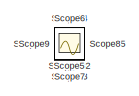
[diagram: root canvas - part 1/2, top left region]
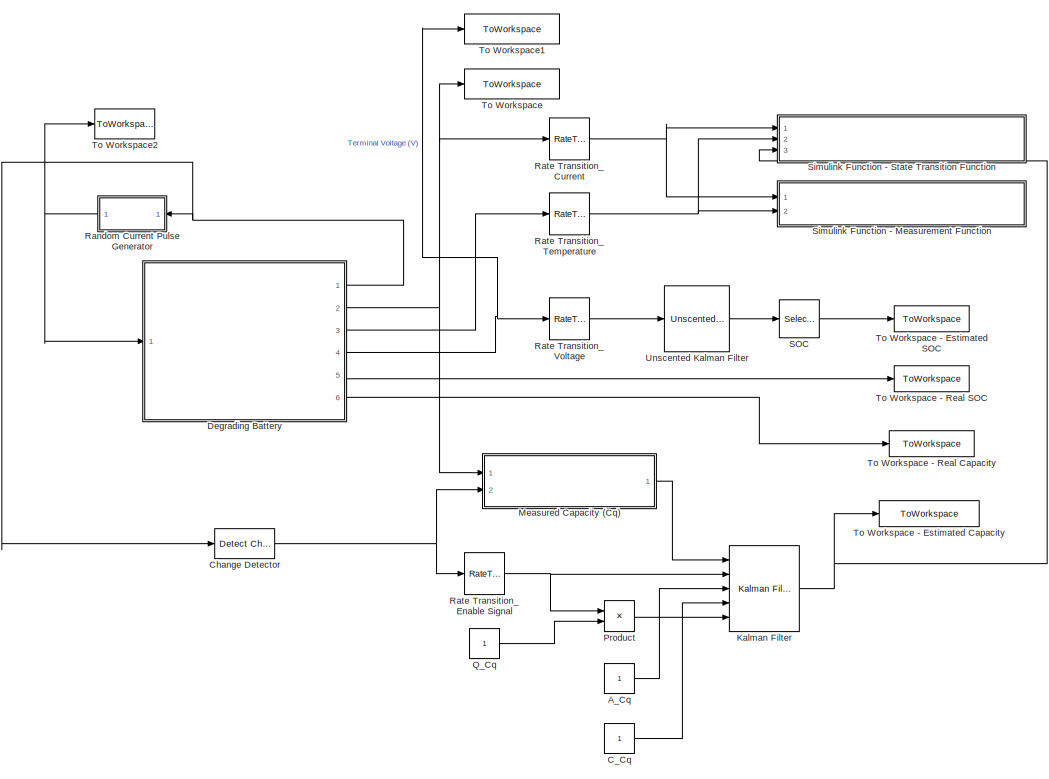
[diagram: root canvas - part 2/2, most of the canvas]
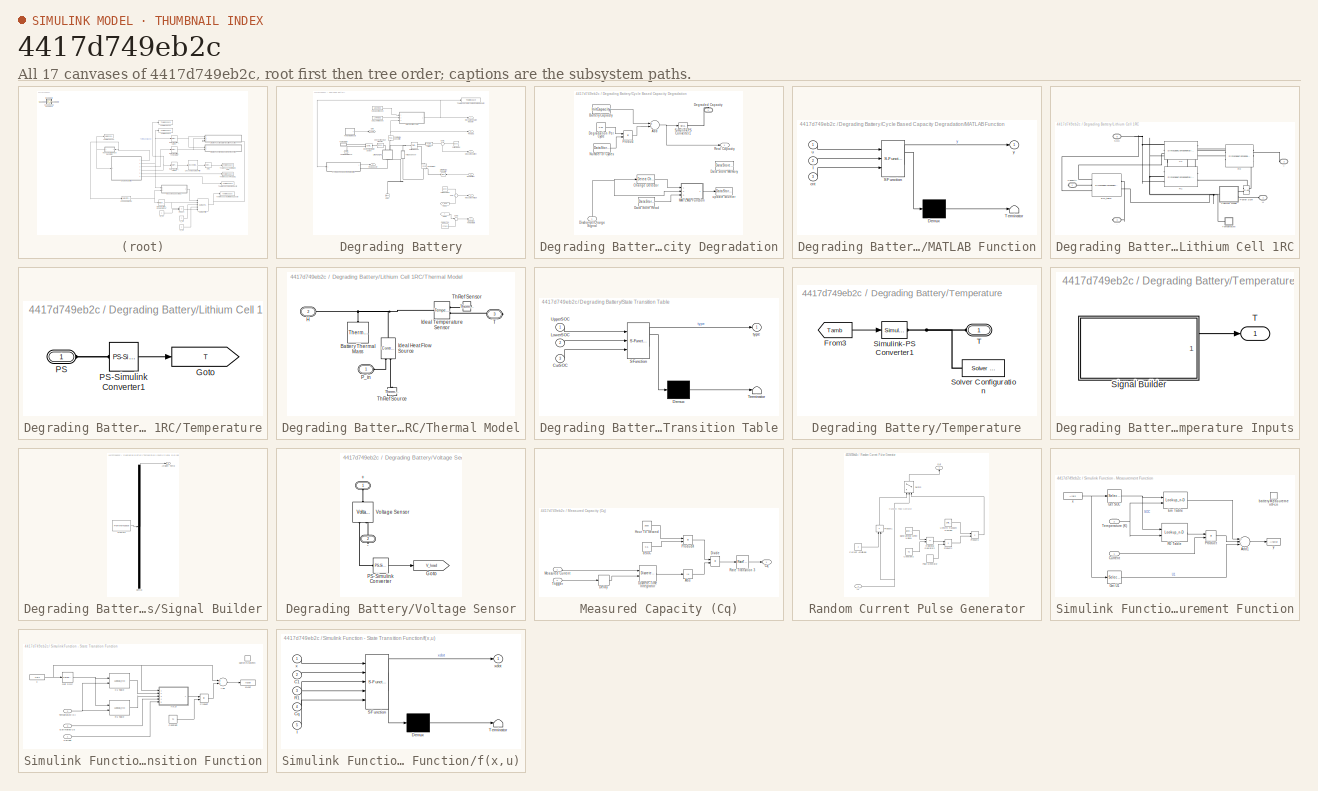
[diagram: thumbnail index - all 17 canvases of the model, root first then tree order]
MODEL slx_4417d749eb2c
KIND model
CONFIG AbsTol = auto
CONFIG EnableMultiTasking = off
CONFIG FixedStep = auto
CONFIG MaxStep = auto
CONFIG MinStep = auto
CONFIG RelTol = 1e-3
CONFIG SampleTimeConstraint = Unconstrained
CONFIG Solver = VariableStepAuto
CONFIG SolverName = VariableStepAuto
CONFIG StartTime = 0.0
CONFIG StopTime = 100000
BLOCK [Constant] A_Cq
BLOCK [Constant] C_Cq
BLOCK [Reference] Change Detector  REF=simulink/Logic and Bit
Operations/Detect
Change
  Ports = [1, 1]
  SourceBlock = simulink/Logic and Bit\nOperations/Detect\nChange
  SourceProductBaseCode = SL
  SourceProductName = Simulink
  SourceType = Detect Change
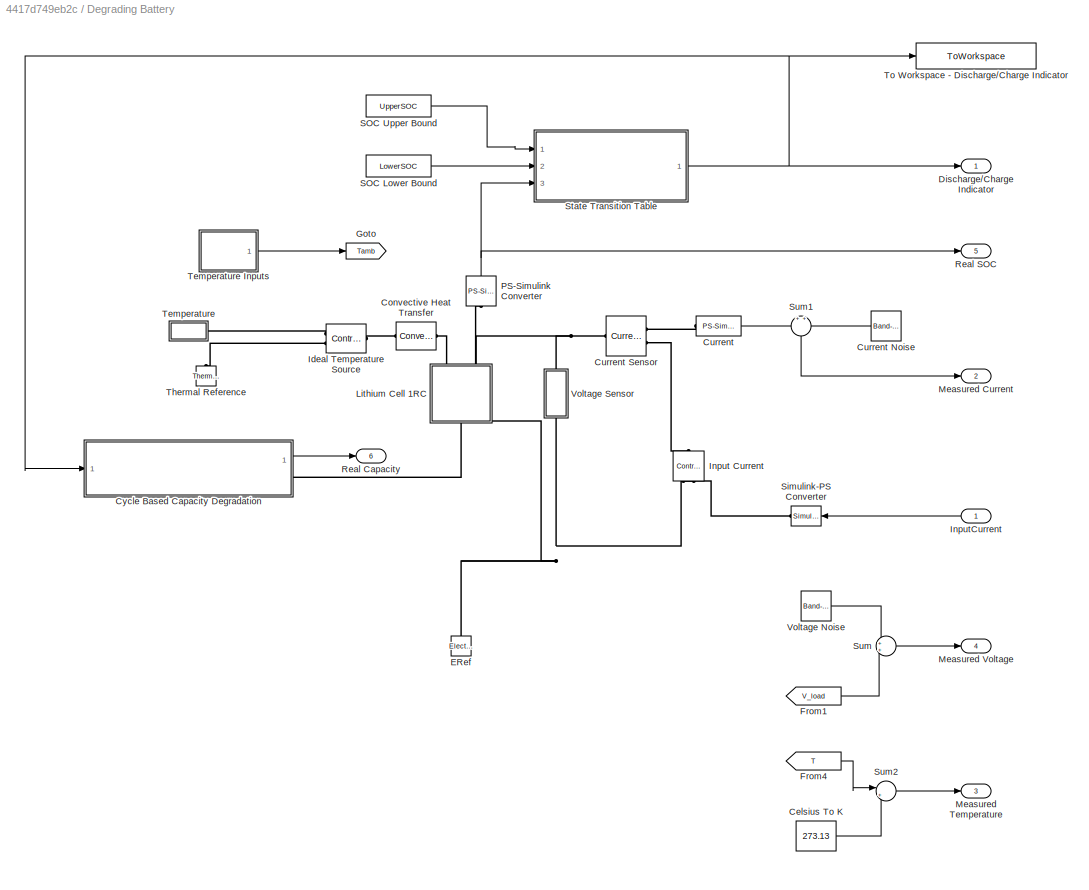
BLOCK [SubSystem] Degrading Battery
  Ports = [1, 6]
  RequestExecContextInheritance = off
  Variant = off
BLOCK [Constant] Degrading Battery/Celsius To K
  Value = 273.13
BLOCK [Reference] Degrading Battery/Convective Heat Transfer  REF=fl_lib/Thermal/Thermal Elements/Convective Heat
Transfer
  Ports = [0, 0, 0, 0, 0, 1, 1]
  SourceBlock = fl_lib/Thermal/Thermal Elements/Convective Heat\nTransfer
  SourceProductBaseCode = SS
  SourceProductName = Simscape
  SourceType = Convective Heat\nTransfer
BLOCK [Reference] Degrading Battery/Current  REF=nesl_utility/PS-Simulink
Converter
  Ports = [0, 1, 0, 0, 0, 1]
  SourceBlock = nesl_utility/PS-Simulink\nConverter
  SourceProductBaseCode = SS
  SourceProductName = Simscape
  SourceType = PS-Simulink\nConverter
BLOCK [Reference] Degrading Battery/Current Noise  REF=simulink/Sources/Band-Limited
White Noise
  Ports = [0, 1]
  SourceBlock = simulink/Sources/Band-Limited\nWhite Noise
  SourceProductBaseCode = SL
  SourceProductName = Simulink
  SourceType = Band-Limited White Noise.
BLOCK [Reference] Degrading Battery/Current Sensor  REF=fl_lib/Electrical/Electrical Sensors/Current Sensor
  Ports = [0, 0, 0, 0, 0, 1, 2]
  SourceBlock = fl_lib/Electrical/Electrical Sensors/Current Sensor
  SourceProductBaseCode = SS
  SourceProductName = Simscape
  SourceType = Current Sensor
BLOCK [SubSystem] Degrading Battery/Cycle Based Capacity Degradation
  Ports = [1, 1, 0, 0, 0, 0, 1]
  RequestExecContextInheritance = off
  Variant = off
BLOCK [Sum] Degrading Battery/Cycle Based Capacity Degradation/Add
  InputSameDT = off
  Inputs = +-
  OutDataTypeStr = Inherit: Inherit via internal rule
  Ports = [2, 1]
  SaturateOnIntegerOverflow = off
BLOCK [Constant] Degrading Battery/Cycle Based Capacity Degradation/Battery Capacity
  Value = InitCapacity
BLOCK [Reference] Degrading Battery/Cycle Based Capacity Degradation/Change Detector  REF=simulink/Logic and Bit
Operations/Detect
Change
  Ports = [1, 1]
  SourceBlock = simulink/Logic and Bit\nOperations/Detect\nChange
  SourceProductBaseCode = SL
  SourceProductName = Simulink
  SourceType = Detect Change
BLOCK [DataStoreMemory] Degrading Battery/Cycle Based Capacity Degradation/Data Store Memory
  DataStoreName = NumCycle
  ShowAdditionalParam = off
BLOCK [DataStoreRead] Degrading Battery/Cycle Based Capacity Degradation/Data Store Read
  DataStoreName = NumCycle
  Ports = [0, 1]
BLOCK [Constant] Degrading Battery/Cycle Based Capacity Degradation/Degradation Per Cycle
  Value = 0.05
BLOCK [PMIOPort] Degrading Battery/Cycle Based Capacity Degradation/Degraded Capacity
  Port = 1
  Side = Right
BLOCK [Inport] Degrading Battery/Cycle Based Capacity Degradation/Discharge//Charge Signal
  IconDisplay = Port number
BLOCK [SubSystem] Degrading Battery/Cycle Based Capacity Degradation/MATLAB Function
  ErrorFcn = Stateflow.Translate.translate
  PermitHierarchicalResolution = ExplicitOnly
  Ports = [3, 1]
  RequestExecContextInheritance = off
  SFBlockType = MATLAB Function
  TreatAsAtomicUnit = on
  Variant = off
BLOCK [Demux] Degrading Battery/Cycle Based Capacity Degradation/MATLAB Function/ Demux 
  Outputs = 1
  Ports = [1, 1]
BLOCK [S-Function] Degrading Battery/Cycle Based Capacity Degradation/MATLAB Function/ SFunction 
  EnableBusSupport = on
  FunctionName = sf_sfun
  PortCounts = [3 2]
  Ports = [3, 2]
  SFcnIsStateOwnerBlock = off
  SFunctionDeploymentMode = off
  Tag = Stateflow S-Function BatteryExampleUKF 5
BLOCK [Terminator] Degrading Battery/Cycle Based Capacity Degradation/MATLAB Function/ Terminator 
BLOCK [Inport] Degrading Battery/Cycle Based Capacity Degradation/MATLAB Function/I
  IconDisplay = Port number
  Port = 2
BLOCK [Inport] Degrading Battery/Cycle Based Capacity Degradation/MATLAB Function/cnt
  IconDisplay = Port number
  Port = 3
BLOCK [Inport] Degrading Battery/Cycle Based Capacity Degradation/MATLAB Function/u
  IconDisplay = Port number
BLOCK [Outport] Degrading Battery/Cycle Based Capacity Degradation/MATLAB Function/y
  IconDisplay = Port number
BLOCK [DataStoreRead] Degrading Battery/Cycle Based Capacity Degradation/Number of Cycles
  DataStoreName = NumCycle
  Ports = [0, 1]
BLOCK [Product] Degrading Battery/Cycle Based Capacity Degradation/Product
  InputSameDT = off
  OutDataTypeStr = Inherit: Inherit via internal rule
  Ports = [2, 1]
  RndMeth = Floor
  SaturateOnIntegerOverflow = off
BLOCK [Outport] Degrading Battery/Cycle Based Capacity Degradation/Real Capacity
  IconDisplay = Port number
BLOCK [Reference] Degrading Battery/Cycle Based Capacity Degradation/Simulink-PS Converter1  REF=nesl_utility/Simulink-PS
Converter
  Ports = [1, 0, 0, 0, 0, 0, 1]
  SourceBlock = nesl_utility/Simulink-PS\nConverter
  SourceProductBaseCode = SS
  SourceProductName = Simscape
  SourceType = Simulink-PS\nConverter
BLOCK [DataStoreWrite] Degrading Battery/Cycle Based Capacity Degradation/update counter
  DataStoreName = NumCycle
  Ports = [1]
BLOCK [Outport] Degrading Battery/Discharge//Charge Indicator
  IconDisplay = Port number
BLOCK [Reference] Degrading Battery/ERef  REF=fl_lib/Electrical/Electrical Elements/Electrical Reference
  Ports = [0, 0, 0, 0, 0, 1]
  SourceBlock = fl_lib/Electrical/Electrical Elements/Electrical Reference
  SourceProductBaseCode = SS
  SourceProductName = Simscape
  SourceType = Electrical Reference
BLOCK [From] Degrading Battery/From1
  GotoTag = V_load
  TagVisibility = global
BLOCK [From] Degrading Battery/From4
  GotoTag = T
  TagVisibility = global
BLOCK [Goto] Degrading Battery/Goto
  GotoTag = Tamb
  TagVisibility = global
BLOCK [Reference] Degrading Battery/Ideal Temperature Source  REF=fl_lib/Thermal/Thermal Sources/Controlled
Temperature Source
  Ports = [0, 0, 0, 0, 0, 1, 2]
  SourceBlock = fl_lib/Thermal/Thermal Sources/Controlled\nTemperature Source
  SourceProductBaseCode = SS
  SourceProductName = Simscape
  SourceType = Controlled\nTemperature Source
BLOCK [Reference] Degrading Battery/Input Current  REF=fl_lib/Electrical/Electrical Sources/Controlled Current
Source
  Ports = [0, 0, 0, 0, 0, 1, 2]
  SourceBlock = fl_lib/Electrical/Electrical Sources/Controlled Current\nSource
  SourceProductBaseCode = SS
  SourceProductName = Simscape
  SourceType = Controlled Current\nSource
BLOCK [Inport] Degrading Battery/InputCurrent
  IconDisplay = Port number
BLOCK [SubSystem] Degrading Battery/Lithium Cell 1RC
  Ports = [0, 0, 0, 0, 0, 3, 2]
  RequestExecContextInheritance = off
  Tag = PublishSubsystemCustomStyle
  Variant = off
BLOCK [PMIOPort] Degrading Battery/Lithium Cell 1RC/+
  Port = 2
  Side = Left
  Tag = PMCPort
BLOCK [PMIOPort] Degrading Battery/Lithium Cell 1RC/-
  Port = 3
  Side = Right
  Tag = PMCPort
BLOCK [SimscapeComponentBlock] Degrading Battery/Lithium Cell 1RC/C1
  C_Table = C1_LUT
  C_Table_conf = compiletime
  C_Table_unit = F
  ClassName = C_table
  ComponentPath = C_table
  ComponentVariantNames = C_table
  ComponentVariants = C_table
  CopyFcn = simscape.engine.sli.internal.componentblockcallback(gcbh,'COPY')
  MaskDisplay = disp('Simscape\n\n\n')\ndisp('\n\n\nC_table');\ncolor('red');\nport_label('LConn', 3,'SOC');\nport_label('LConn', 2,'T');\nport_label('RConn', 1,'-');\nport_label('LConn', 1,'+');
  MaskType = C_table
  Ports = [0, 0, 0, 0, 0, 3, 1]
  PreCopyFcn = simscape.engine.sli.internal.componentblockcallback(gcbh,'PRECOPY')
  PreDeleteFcn = simscape.engine.sli.internal.componentblockcallback(gcbh,'PREDELETE')
  SOC_Table = SOC_LUT
  SOC_Table_conf = compiletime
  SOC_Table_unit = 1
  SchemaVersion = 1
  SourceFile = C_table
  Temp_Table = Temperature_LUT
  Temp_Table_conf = compiletime
  Temp_Table_unit = K
  v0 = 0
  v0_conf = compiletime
  v0_unit = V
BLOCK [PMIOPort] Degrading Battery/Lithium Cell 1RC/Capacity
  Port = 4
  Side = Right
  Tag = PMCPort
BLOCK [SimscapeComponentBlock] Degrading Battery/Lithium Cell 1RC/Em_table
  ClassName = Em_table
  ComponentPath = Em_table
  ComponentVariantNames = Em_table
  ComponentVariants = Em_table
  CopyFcn = simscape.engine.sli.internal.componentblockcallback(gcbh,'COPY')
  Em_Table = Em_LUT
  Em_Table_conf = compiletime
  Em_Table_unit = V
  MaskDisplay = disp('Simscape\n\n\n')\ndisp('\n\n\nEm_table');\ncolor('red');\nport_label('LConn', 3,'SOC');\nport_label('LConn', 2,'Capacity');\nport_label('RConn', 2,'T');\nport_label('RConn', 1,'-');\nport_label('LConn', 1,'+');
  MaskType = Em_table
  Ports = [0, 0, 0, 0, 0, 3, 2]
  PreCopyFcn = simscape.engine.sli.internal.componentblockcallback(gcbh,'PRECOPY')
  PreDeleteFcn = simscape.engine.sli.internal.componentblockcallback(gcbh,'PREDELETE')
  Qinit = Qinit
  Qinit_conf = compiletime
  Qinit_unit = hr*A
  SOC_Table = SOC_LUT
  SOC_Table_conf = compiletime
  SOC_Table_unit = 1
  SchemaVersion = 1
  SourceFile = Em_table
  Temp_Table = Temperature_LUT
  Temp_Table_conf = compiletime
  Temp_Table_unit = K
BLOCK [PMIOPort] Degrading Battery/Lithium Cell 1RC/H
  Port = 1
  Side = Left
  Tag = PMCPort
BLOCK [Reference] Degrading Battery/Lithium Cell 1RC/Power Sum  REF=fl_lib/Physical Signals/Functions/PS Add
  Ports = [0, 0, 0, 0, 0, 2, 1]
  SourceBlock = fl_lib/Physical Signals/Functions/PS Add
  SourceProductBaseCode = SS
  SourceProductName = Simscape
  SourceType = PS Add
BLOCK [SimscapeComponentBlock] Degrading Battery/Lithium Cell 1RC/R0
  ClassName = R_table
  ComponentPath = R_table
  ComponentVariantNames = R_table
  ComponentVariants = R_table
  CopyFcn = simscape.engine.sli.internal.componentblockcallback(gcbh,'COPY')
  MaskDisplay = disp('Simscape\n\n\n')\ndisp('\n\n\nR_table');\ncolor('red');\nport_label('RConn', 2,'POW');\nport_label('LConn', 3,'SOC');\nport_label('LConn', 2,'T');\nport_label('RConn', 1,'-');\nport_label('LConn', 1,'+');
  MaskType = R_table
  Ports = [0, 0, 0, 0, 0, 3, 2]
  PreCopyFcn = simscape.engine.sli.internal.componentblockcallback(gcbh,'PRECOPY')
  PreDeleteFcn = simscape.engine.sli.internal.componentblockcallback(gcbh,'PREDELETE')
  R_Table = R0_LUT
  R_Table_conf = compiletime
  R_Table_unit = Ohm
  SOC_Table = SOC_LUT
  SOC_Table_conf = compiletime
  SOC_Table_unit = 1
  SchemaVersion = 1
  SourceFile = R_table
  Temp_Table = Temperature_LUT
  Temp_Table_conf = compiletime
  Temp_Table_unit = K
BLOCK [SimscapeComponentBlock] Degrading Battery/Lithium Cell 1RC/R1
  ClassName = R_table
  ComponentPath = R_table
  ComponentVariantNames = R_table
  ComponentVariants = R_table
  CopyFcn = simscape.engine.sli.internal.componentblockcallback(gcbh,'COPY')
  MaskDisplay = disp('Simscape\n\n\n')\ndisp('\n\n\nR_table');\ncolor('red');\nport_label('RConn', 2,'POW');\nport_label('LConn', 3,'SOC');\nport_label('LConn', 2,'T');\nport_label('RConn', 1,'-');\nport_label('LConn', 1,'+');
  MaskType = R_table
  Ports = [0, 0, 0, 0, 0, 3, 2]
  PreCopyFcn = simscape.engine.sli.internal.componentblockcallback(gcbh,'PRECOPY')
  PreDeleteFcn = simscape.engine.sli.internal.componentblockcallback(gcbh,'PREDELETE')
  R_Table = R1_LUT
  R_Table_conf = compiletime
  R_Table_unit = Ohm
  SOC_Table = SOC_LUT
  SOC_Table_conf = compiletime
  SOC_Table_unit = 1
  SchemaVersion = 1
  SourceFile = R_table
  Temp_Table = Temperature_LUT
  Temp_Table_conf = compiletime
  Temp_Table_unit = K
BLOCK [PMIOPort] Degrading Battery/Lithium Cell 1RC/SOC
  Port = 5
  Side = Left
  Tag = PMCPort
BLOCK [SubSystem] Degrading Battery/Lithium Cell 1RC/Temperature
  Ports = [0, 0, 0, 0, 0, 1]
  RequestExecContextInheritance = off
  Variant = off
BLOCK [Goto] Degrading Battery/Lithium Cell 1RC/Temperature/Goto
  GotoTag = T
  TagVisibility = global
BLOCK [PMIOPort] Degrading Battery/Lithium Cell 1RC/Temperature/PS
  Port = 1
  Side = Left
BLOCK [Reference] Degrading Battery/Lithium Cell 1RC/Temperature/PS-Simulink Converter1  REF=nesl_utility/PS-Simulink
Converter
  Ports = [0, 1, 0, 0, 0, 1]
  SourceBlock = nesl_utility/PS-Simulink\nConverter
  SourceProductBaseCode = SS
  SourceProductName = Simscape
  SourceType = PS-Simulink\nConverter
BLOCK [SubSystem] Degrading Battery/Lithium Cell 1RC/Thermal Model
  Ports = [0, 0, 0, 0, 0, 2, 1]
  RequestExecContextInheritance = off
  Variant = off
BLOCK [Reference] Degrading Battery/Lithium Cell 1RC/Thermal Model/Battery Thermal Mass  REF=fl_lib/Thermal/Thermal Elements/Thermal Mass
  Ports = [0, 0, 0, 0, 0, 1]
  SourceBlock = fl_lib/Thermal/Thermal Elements/Thermal Mass
  SourceProductBaseCode = SS
  SourceProductName = Simscape
  SourceType = Thermal Mass
BLOCK [PMIOPort] Degrading Battery/Lithium Cell 1RC/Thermal Model/H
  Port = 2
  Side = Left
  Tag = PMCPort
BLOCK [Reference] Degrading Battery/Lithium Cell 1RC/Thermal Model/Ideal Heat Flow Source  REF=fl_lib/Thermal/Thermal Sources/Controlled Heat Flow
Rate Source
  Ports = [0, 0, 0, 0, 0, 1, 2]
  SourceBlock = fl_lib/Thermal/Thermal Sources/Controlled Heat Flow\nRate Source
  SourceProductBaseCode = SS
  SourceProductName = Simscape
  SourceType = Controlled Heat Flow\nRate Source
BLOCK [Reference] Degrading Battery/Lithium Cell 1RC/Thermal Model/Ideal Temperature Sensor  REF=fl_lib/Thermal/Thermal Sensors/Temperature Sensor
  Ports = [0, 0, 0, 0, 0, 1, 2]
  SourceBlock = fl_lib/Thermal/Thermal Sensors/Temperature Sensor
  SourceProductBaseCode = SS
  SourceProductName = Simscape
  SourceType = Temperature Sensor
BLOCK [PMIOPort] Degrading Battery/Lithium Cell 1RC/Thermal Model/P_in
  Port = 1
  Side = Left
  Tag = PMCPort
BLOCK [PMIOPort] Degrading Battery/Lithium Cell 1RC/Thermal Model/T
  Port = 3
  Side = Right
  Tag = PMCPort
BLOCK [Reference] Degrading Battery/Lithium Cell 1RC/Thermal Model/ThRef Sensor  REF=fl_lib/Thermal/Thermal Elements/Thermal Reference
  Ports = [0, 0, 0, 0, 0, 1]
  SourceBlock = fl_lib/Thermal/Thermal Elements/Thermal Reference
  SourceProductBaseCode = SS
  SourceProductName = Simscape
  SourceType = Thermal Reference
BLOCK [Reference] Degrading Battery/Lithium Cell 1RC/Thermal Model/ThRef Source  REF=fl_lib/Thermal/Thermal Elements/Thermal Reference
  Ports = [0, 0, 0, 0, 0, 1]
  SourceBlock = fl_lib/Thermal/Thermal Elements/Thermal Reference
  SourceProductBaseCode = SS
  SourceProductName = Simscape
  SourceType = Thermal Reference
BLOCK [Outport] Degrading Battery/Measured Current
  IconDisplay = Port number
  Port = 2
BLOCK [Outport] Degrading Battery/Measured Temperature
  IconDisplay = Port number
  Port = 3
BLOCK [Outport] Degrading Battery/Measured Voltage
  IconDisplay = Port number
  Port = 4
BLOCK [Reference] Degrading Battery/PS-Simulink Converter  REF=nesl_utility/PS-Simulink
Converter
  Ports = [0, 1, 0, 0, 0, 1]
  SourceBlock = nesl_utility/PS-Simulink\nConverter
  SourceProductBaseCode = SS
  SourceProductName = Simscape
  SourceType = PS-Simulink\nConverter
BLOCK [Outport] Degrading Battery/Real Capacity
  IconDisplay = Port number
  Port = 6
BLOCK [Outport] Degrading Battery/Real SOC
  IconDisplay = Port number
  Port = 5
BLOCK [Constant] Degrading Battery/SOC Lower Bound
  Value = LowerSOC
BLOCK [Constant] Degrading Battery/SOC Upper Bound
  Value = UpperSOC
BLOCK [Reference] Degrading Battery/Simulink-PS Converter  REF=nesl_utility/Simulink-PS
Converter
  Ports = [1, 0, 0, 0, 0, 0, 1]
  SourceBlock = nesl_utility/Simulink-PS\nConverter
  SourceProductBaseCode = SS
  SourceProductName = Simscape
  SourceType = Simulink-PS\nConverter
BLOCK [SubSystem] Degrading Battery/State Transition Table
  ErrorFcn = Stateflow.Translate.translate
  PermitHierarchicalResolution = ExplicitOnly
  Ports = [3, 1]
  RequestExecContextInheritance = off
  SFBlockType = State Transition Table
  TreatAsAtomicUnit = on
  Variant = off
BLOCK [Demux] Degrading Battery/State Transition Table/ Demux 
  Outputs = 1
  Ports = [1, 1]
BLOCK [S-Function] Degrading Battery/State Transition Table/ SFunction 
  EnableBusSupport = on
  FunctionName = sf_sfun
  PortCounts = [3 2]
  Ports = [3, 2]
  SFcnIsStateOwnerBlock = off
  SFunctionDeploymentMode = off
  Tag = Stateflow S-Function BatteryExampleUKF 4
BLOCK [Terminator] Degrading Battery/State Transition Table/ Terminator 
BLOCK [Inport] Degrading Battery/State Transition Table/CurSOC
  IconDisplay = Port number
  Port = 3
BLOCK [Inport] Degrading Battery/State Transition Table/LowerSOC
  IconDisplay = Port number
  Port = 2
BLOCK [Inport] Degrading Battery/State Transition Table/UpperSOC
  IconDisplay = Port number
BLOCK [Outport] Degrading Battery/State Transition Table/type
  IconDisplay = Port number
BLOCK [Sum] Degrading Battery/Sum
  IconShape = round
  InputSameDT = off
  OutDataTypeStr = Inherit: Inherit via internal rule
  Ports = [2, 1]
  SaturateOnIntegerOverflow = off
BLOCK [Sum] Degrading Battery/Sum1
  IconShape = round
  InputSameDT = off
  OutDataTypeStr = Inherit: Inherit via internal rule
  Ports = [2, 1]
  SaturateOnIntegerOverflow = off
BLOCK [Sum] Degrading Battery/Sum2
  IconShape = round
  InputSameDT = off
  Inputs = |++
  OutDataTypeStr = Inherit: Inherit via internal rule
  Ports = [2, 1]
  SaturateOnIntegerOverflow = off
BLOCK [SubSystem] Degrading Battery/Temperature
  Ports = [0, 0, 0, 0, 0, 1]
  RequestExecContextInheritance = off
  Variant = off
BLOCK [SubSystem] Degrading Battery/Temperature Inputs
  Ports = [0, 1]
  RequestExecContextInheritance = off
  Variant = off
BLOCK [SubSystem] Degrading Battery/Temperature Inputs/Signal Builder
  ClipboardFcn = sigbuilder_block('clipboard');
  CloseFcn = sigbuilder_block('close');
  ContinueFcn = sigbuilder_block('continue');
  CopyFcn = sigbuilder_block('copy');
  DeleteFcn = sigbuilder_block('delete');
  LoadFcn = sigbuilder_block('load');
  MaskHideContents = on
  ModelCloseFcn = sigbuilder_block('modelClose');
  NameChangeFcn = sigbuilder_block('namechange');
  OpenFcn = sigbuilder_block('open',[45.75 269.25 978 385.5 ]);
  PauseFcn = sigbuilder_block('pause');
  Ports = [0, 1]
  PreSaveFcn = sigbuilder_block('preSave');
  RequestExecContextInheritance = off
  StartFcn = sigbuilder_block('start');
  StopFcn = sigbuilder_block('stop');
  Tag = STV Subsys
  Variant = off
BLOCK [Outport] Degrading Battery/Temperature Inputs/Signal Builder/Ambient Temp
  IconDisplay = Port number
  Tag = STV Outport
BLOCK [Demux] Degrading Battery/Temperature Inputs/Signal Builder/Demux
  Outputs = 1
  Ports = [1, 1]
  Tag = STV Demux
BLOCK [FromWorkspace] Degrading Battery/Temperature Inputs/Signal Builder/FromWs
  SampleTime = 0
  Tag = STV FromWs
  VariableName = tuvar
  ZeroCross = on
BLOCK [Outport] Degrading Battery/Temperature Inputs/T
  IconDisplay = Port number
BLOCK [From] Degrading Battery/Temperature/From3
  GotoTag = Tamb
  TagVisibility = global
BLOCK [Reference] Degrading Battery/Temperature/Simulink-PS Converter1  REF=nesl_utility/Simulink-PS
Converter
  Ports = [1, 0, 0, 0, 0, 0, 1]
  SourceBlock = nesl_utility/Simulink-PS\nConverter
  SourceProductBaseCode = SS
  SourceProductName = Simscape
  SourceType = Simulink-PS\nConverter
BLOCK [Reference] Degrading Battery/Temperature/Solver Configuration  REF=nesl_utility/Solver
Configuration
  Ports = [0, 0, 0, 0, 0, 0, 1]
  SourceBlock = nesl_utility/Solver\nConfiguration
  SourceProductBaseCode = SS
  SourceProductName = Simscape
  SourceType = Solver\nConfiguration
BLOCK [PMIOPort] Degrading Battery/Temperature/T
  Port = 1
  Side = Left
BLOCK [Reference] Degrading Battery/Thermal Reference  REF=fl_lib/Thermal/Thermal Elements/Thermal Reference
  Ports = [0, 0, 0, 0, 0, 1]
  SourceBlock = fl_lib/Thermal/Thermal Elements/Thermal Reference
  SourceProductBaseCode = SS
  SourceProductName = Simscape
  SourceType = Thermal Reference
BLOCK [ToWorkspace] Degrading Battery/To Workspace - Discharge//Charge Indicator
  FixptAsFi = on
  MaxDataPoints = inf
  Ports = [1]
  SampleTime = -1
  Save2DSignal = 3-D array (concatenate along third dimension)
  SaveFormat = Timeseries
  VariableName = DischargeChargeIndicator
BLOCK [Reference] Degrading Battery/Voltage Noise  REF=simulink/Sources/Band-Limited
White Noise
  Ports = [0, 1]
  SourceBlock = simulink/Sources/Band-Limited\nWhite Noise
  SourceProductBaseCode = SL
  SourceProductName = Simulink
  SourceType = Band-Limited White Noise.
BLOCK [SubSystem] Degrading Battery/Voltage Sensor
  Ports = [0, 0, 0, 0, 0, 1, 1]
  RequestExecContextInheritance = off
  Variant = off
BLOCK [PMIOPort] Degrading Battery/Voltage Sensor/+
  Port = 1
  Side = Left
BLOCK [PMIOPort] Degrading Battery/Voltage Sensor/-
  Port = 2
  Side = Right
BLOCK [Goto] Degrading Battery/Voltage Sensor/Goto
  GotoTag = V_load
  TagVisibility = global
BLOCK [Reference] Degrading Battery/Voltage Sensor/PS-Simulink Converter  REF=nesl_utility/PS-Simulink
Converter
  Ports = [0, 1, 0, 0, 0, 1]
  SourceBlock = nesl_utility/PS-Simulink\nConverter
  SourceProductBaseCode = SS
  SourceProductName = Simscape
  SourceType = PS-Simulink\nConverter
BLOCK [Reference] Degrading Battery/Voltage Sensor/Voltage Sensor  REF=fl_lib/Electrical/Electrical Sensors/Voltage Sensor
  Ports = [0, 0, 0, 0, 0, 1, 2]
  SourceBlock = fl_lib/Electrical/Electrical Sensors/Voltage Sensor
  SourceProductBaseCode = SS
  SourceProductName = Simscape
  SourceType = Voltage Sensor
BLOCK [Reference] Kalman Filter  REF=ctrlSharedLib/Kalman Filter
  Ports = [5, 1]
  SourceBlock = ctrlSharedLib/Kalman Filter
  SourceProductBaseCode = CT
  SourceProductName = Control System Toolbox
  SourceType = ctrlKalmanFilter
BLOCK [SubSystem] Measured Capacity (Cq)
  Ports = [2, 1]
  RequestExecContextInheritance = off
  Variant = off
BLOCK [Abs] Measured Capacity (Cq)/Abs
  SaturateOnIntegerOverflow = off
BLOCK [Outport] Measured Capacity (Cq)/Cq
  IconDisplay = Port number
BLOCK [Delay] Measured Capacity (Cq)/Delay
  DelayLength = 1
  InitialCondition = 0
  InputPortMap = u0
  Ports = [1, 1]
BLOCK [DiscreteIntegrator] Measured Capacity (Cq)/Discrete-Time Integrator
  ExternalReset = rising
  ICPrevOutput = DiscIntNeverNeededParam
  ICPrevScaledInput = DiscIntNeverNeededParam
  InitialConditionSetting = State (most efficient)
  IntegratorMethod = Integration: Trapezoidal
  Ports = [2, 1]
  SampleTime = -1
BLOCK [Product] Measured Capacity (Cq)/Divide
  InputSameDT = off
  Inputs = /*
  OutDataTypeStr = Inherit: Inherit via internal rule
  Ports = [2, 1]
  RndMeth = Floor
  SaturateOnIntegerOverflow = off
BLOCK [Constant] Measured Capacity (Cq)/Hour To Second
  Value = 3600
BLOCK [Inport] Measured Capacity (Cq)/Measured Current
  IconDisplay = Port number
BLOCK [Product] Measured Capacity (Cq)/Product4
  InputSameDT = off
  OutDataTypeStr = Inherit: Inherit via internal rule
  Ports = [2, 1]
  RndMeth = Floor
  SaturateOnIntegerOverflow = off
BLOCK [RateTransition] Measured Capacity (Cq)/Rate Transition 3
  InitialCondition = InitCapacity
  OutPortSampleTime = Ts
BLOCK [Inport] Measured Capacity (Cq)/Trigger
  IconDisplay = Port number
  Port = 2
BLOCK [Constant] Measured Capacity (Cq)/dSOC
  Value = 0.6
BLOCK [Product] Product
  InputSameDT = off
  OutDataTypeStr = Inherit: Inherit via internal rule
  Ports = [2, 1]
  RndMeth = Floor
  SaturateOnIntegerOverflow = off
BLOCK [Constant] Q_Cq
BLOCK [SubSystem] Random Current Pulse Generator
  Ports = [1, 1]
  RequestExecContextInheritance = off
  Variant = off
BLOCK [Reference] Random Current Pulse Generator/Band-Limited White Noise1  REF=simulink/Sources/Band-Limited
White Noise
  Ports = [0, 1]
  SourceBlock = simulink/Sources/Band-Limited\nWhite Noise
  SourceProductBaseCode = SL
  SourceProductName = Simulink
  SourceType = Band-Limited White Noise.
BLOCK [Constant] Random Current Pulse Generator/Constant2
  Value = 0.1
BLOCK [Constant] Random Current Pulse Generator/Current Amplitude
  Value = 2
BLOCK [Inport] Random Current Pulse Generator/In
  IconDisplay = Port number
BLOCK [Outport] Random Current Pulse Generator/Out
  IconDisplay = Port number
BLOCK [Product] Random Current Pulse Generator/Product1
  InputSameDT = off
  OutDataTypeStr = Inherit: Inherit via internal rule
  Ports = [2, 1]
  RndMeth = Floor
  SaturateOnIntegerOverflow = off
BLOCK [Product] Random Current Pulse Generator/Product2
  InputSameDT = off
  OutDataTypeStr = Inherit: Inherit via internal rule
  Ports = [2, 1]
  RndMeth = Floor
  SaturateOnIntegerOverflow = off
BLOCK [Product] Random Current Pulse Generator/Product3
  InputSameDT = off
  OutDataTypeStr = Inherit: Inherit via internal rule
  Ports = [2, 1]
  RndMeth = Floor
  SaturateOnIntegerOverflow = off
BLOCK [DiscretePulseGenerator] Random Current Pulse Generator/Pulse Generator
  Amplitude = -1
  Period = 1000
  Ports = [0, 1]
  PulseType = Time based
  PulseWidth = 90
BLOCK [RelationalOperator] Random Current Pulse Generator/Relational Operator2
  InputSameDT = off
  Operator = <=
  OutDataTypeStr = boolean
  Ports = [2, 1]
  RndMeth = Simplest
BLOCK [Switch] Random Current Pulse Generator/Switch
  Criteria = u2 > Threshold
  InputSameDT = off
  SaturateOnIntegerOverflow = off
BLOCK [UniformRandomNumber] Random Current Pulse Generator/Uniform Random Number
  Maximum = 1.5
  Minimum = 0.7
  SampleTime = 100
BLOCK [RateTransition] Rate Transition_Current
  OutPortSampleTime = Ts
BLOCK [RateTransition] Rate Transition_Enable Signal
  OutPortSampleTime = Ts
BLOCK [RateTransition] Rate Transition_Temperature
  InitialCondition = 300
  OutPortSampleTime = Ts
BLOCK [RateTransition] Rate Transition_Voltage
  InitialCondition = 4
  OutPortSampleTime = Ts
BLOCK [Selector] SOC
  IndexOptions = Index vector (dialog)
  Indices = 1
  InputPortWidth = 2
  OutputSizes = 1
  Ports = [1, 1]
BLOCK [Scope] Scope
  IOType = viewer
  NumInputPorts = 1
  Ports = []
  ScopeSpecificationString = Simulink.scopes.TimeScopeBlockCfg('CurrentConfiguration', extmgr.ConfigurationSet(extmgr.Configuration('Core','General UI',true),extmgr.Configuration('Core','Source UI',true),extmgr.Configuration('Sources','WiredSimulink',true,'DataLoggingVariableName','ScopeData1'),extmgr.Configuration('Visuals','Time Domain',true,'SerializedDisplays',{struct('MinYLimReal','-0.125','MaxYLimReal','1.125','YLabelRe...<+1375ch>
BLOCK [Scope] Scope1
  IOType = viewer
  NumInputPorts = 1
  Ports = []
  ScopeSpecificationString = Simulink.scopes.TimeScopeBlockCfg('CurrentConfiguration', extmgr.ConfigurationSet(extmgr.Configuration('Core','General UI',true),extmgr.Configuration('Core','Source UI',true),extmgr.Configuration('Sources','WiredSimulink',true,'DataLoggingVariableName','ScopeData1'),extmgr.Configuration('Visuals','Time Domain',true,'SerializedDisplays',{struct('MinYLimReal','-26.96569','MaxYLimReal','55.76087','YL...<+1475ch>
BLOCK [Scope] Scope10
  IOType = viewer
  NumInputPorts = 1
  Ports = []
  ScopeSpecificationString = Simulink.scopes.TimeScopeBlockCfg('CurrentConfiguration', extmgr.ConfigurationSet(extmgr.Configuration('Core','General UI',true),extmgr.Configuration('Core','Source UI',true),extmgr.Configuration('Sources','WiredSimulink',true,'DataLoggingVariableName','ScopeData2'),extmgr.Configuration('Visuals','Time Domain',true,'SerializedDisplays',{struct('MinYLimReal','-10.00000','MaxYLimReal','10.00000','YL...<+1441ch>
BLOCK [Scope] Scope11
  IOType = viewer
  NumInputPorts = 1
  Ports = []
  ScopeSpecificationString = Simulink.scopes.TimeScopeBlockCfg('CurrentConfiguration', extmgr.ConfigurationSet(extmgr.Configuration('Core','General UI',true),extmgr.Configuration('Core','Source UI',true),extmgr.Configuration('Sources','WiredSimulink',true,'DataLoggingVariableName','ScopeData1'),extmgr.Configuration('Visuals','Time Domain',true),extmgr.Configuration('Tools','Plot Navigation',true),extmgr.Configuration('Tools',...<+58ch>
BLOCK [Scope] Scope13
  IOType = viewer
  NumInputPorts = 1
  Ports = []
  ScopeSpecificationString = Simulink.scopes.TimeScopeBlockCfg('CurrentConfiguration', extmgr.ConfigurationSet(extmgr.Configuration('Core','General UI',true),extmgr.Configuration('Core','Source UI',true),extmgr.Configuration('Sources','WiredSimulink',true,'DataLoggingVariableName','ScopeData1'),extmgr.Configuration('Visuals','Time Domain',true,'SerializedDisplays',{struct('MinYLimReal','18.33483','MaxYLimReal','34.98652','YLa...<+1365ch>
BLOCK [Scope] Scope17
  IOType = viewer
  NumInputPorts = 1
  Ports = []
  ScopeSpecificationString = Simulink.scopes.TimeScopeBlockCfg('CurrentConfiguration', extmgr.ConfigurationSet(extmgr.Configuration('Core','General UI',true),extmgr.Configuration('Core','Source UI',true),extmgr.Configuration('Sources','WiredSimulink',true,'DataLoggingVariableName','ScopeData4'),extmgr.Configuration('Visuals','Time Domain',true,'SerializedDisplays',{struct('MinYLimReal','0.999987','MaxYLimReal','1.000001','YLa...<+1412ch>
BLOCK [Scope] Scope18
  IOType = viewer
  NumInputPorts = 1
  Ports = []
  ScopeSpecificationString = Simulink.scopes.TimeScopeBlockCfg('CurrentConfiguration', extmgr.ConfigurationSet(extmgr.Configuration('Core','General UI',true),extmgr.Configuration('Core','Source UI',true),extmgr.Configuration('Sources','WiredSimulink',true,'DataLoggingVariableName','ScopeData5'),extmgr.Configuration('Visuals','Time Domain',true,'SerializedDisplays',{struct('MinYLimReal','-0.00000011','MaxYLimReal','0.00000003'...<+1431ch>
BLOCK [Scope] Scope2
  IOType = viewer
  NumInputPorts = 1
  Ports = []
  ScopeSpecificationString = Simulink.scopes.TimeScopeBlockCfg('CurrentConfiguration', extmgr.ConfigurationSet(extmgr.Configuration('Core','General UI',true),extmgr.Configuration('Core','Source UI',true),extmgr.Configuration('Sources','WiredSimulink',true,'DataLoggingVariableName','ScopeData2'),extmgr.Configuration('Visuals','Time Domain',true,'SerializedDisplays',{struct('MinYLimReal','-0.125','MaxYLimReal','1.125','YLabelRe...<+1347ch>
BLOCK [Scope] Scope20
  IOType = viewer
  NumInputPorts = 1
  Ports = []
  ScopeSpecificationString = Simulink.scopes.TimeScopeBlockCfg('CurrentConfiguration', extmgr.ConfigurationSet(extmgr.Configuration('Core','General UI',true),extmgr.Configuration('Core','Source UI',true),extmgr.Configuration('Sources','WiredSimulink',true,'DataLoggingVariableName','ScopeData1'),extmgr.Configuration('Visuals','Time Domain',true,'SerializedDisplays',{struct('MinYLimReal','29.3125','MaxYLimReal','31.1875','YLabe...<+1429ch>
BLOCK [Scope] Scope22
  IOType = viewer
  NumInputPorts = 1
  Ports = []
  ScopeSpecificationString = Simulink.scopes.TimeScopeBlockCfg('CurrentConfiguration', extmgr.ConfigurationSet(extmgr.Configuration('Core','General UI',true),extmgr.Configuration('Core','Source UI',true),extmgr.Configuration('Sources','WiredSimulink',true,'DataLoggingVariableName','ScopeData1'),extmgr.Configuration('Visuals','Time Domain',true,'SerializedDisplays',{struct('MinYLimReal','27.55102','MaxYLimReal','31.34111','YLa...<+1439ch>
BLOCK [Scope] Scope23
  IOType = viewer
  NumInputPorts = 1
  Ports = []
  ScopeSpecificationString = Simulink.scopes.TimeScopeBlockCfg('CurrentConfiguration', extmgr.ConfigurationSet(extmgr.Configuration('Core','General UI',true),extmgr.Configuration('Core','Source UI',true),extmgr.Configuration('Sources','WiredSimulink',true,'DataLoggingVariableName','ScopeData1'),extmgr.Configuration('Visuals','Time Domain',true,'SerializedDisplays',{struct('MinYLimReal','0.98624','MaxYLimReal','1.12386','YLabe...<+1357ch>
BLOCK [Scope] Scope24
  IOType = viewer
  NumInputPorts = 1
  Ports = []
  ScopeSpecificationString = Simulink.scopes.TimeScopeBlockCfg('CurrentConfiguration', extmgr.ConfigurationSet(extmgr.Configuration('Core','General UI',true),extmgr.Configuration('Core','Source UI',true),extmgr.Configuration('Sources','WiredSimulink',true,'DataLoggingVariableName','ScopeData1'),extmgr.Configuration('Visuals','Time Domain',true,'SerializedDisplays',{struct('MinYLimReal','-114781.3155','MaxYLimReal','114775.701...<+1446ch>
BLOCK [Scope] Scope25
  IOType = viewer
  NumInputPorts = 1
  Ports = []
  ScopeSpecificationString = Simulink.scopes.TimeScopeBlockCfg('CurrentConfiguration', extmgr.ConfigurationSet(extmgr.Configuration('Core','General UI',true),extmgr.Configuration('Core','Source UI',true),extmgr.Configuration('Sources','WiredSimulink',true,'DataLoggingVariableName','ScopeData2'),extmgr.Configuration('Visuals','Time Domain',true,'SerializedDisplays',{struct('MinYLimReal','13.30951','MaxYLimReal','45.58518','YLa...<+1412ch>
BLOCK [Scope] Scope26
  IOType = viewer
  NumInputPorts = 1
  Ports = []
  ScopeSpecificationString = Simulink.scopes.TimeScopeBlockCfg('CurrentConfiguration', extmgr.ConfigurationSet(extmgr.Configuration('Core','General UI',true),extmgr.Configuration('Core','Source UI',true),extmgr.Configuration('Sources','WiredSimulink',true,'DataLoggingVariableName','ScopeData1'),extmgr.Configuration('Visuals','Time Domain',true,'SerializedDisplays',{struct('MinYLimReal','-485.67085','MaxYLimReal','54.67723','Y...<+1396ch>
BLOCK [Scope] Scope27
  IOType = viewer
  NumInputPorts = 1
  Ports = []
  ScopeSpecificationString = Simulink.scopes.TimeScopeBlockCfg('CurrentConfiguration', extmgr.ConfigurationSet(extmgr.Configuration('Core','General UI',true),extmgr.Configuration('Core','Source UI',true),extmgr.Configuration('Sources','WiredSimulink',true,'DataLoggingVariableName','ScopeData2'),extmgr.Configuration('Visuals','Time Domain',true,'SerializedDisplays',{struct('MinYLimReal','-0.00035','MaxYLimReal','0.00016','YLab...<+1431ch>
BLOCK [Scope] Scope28
  IOType = viewer
  NumInputPorts = 1
  Ports = []
  ScopeSpecificationString = Simulink.scopes.TimeScopeBlockCfg('CurrentConfiguration', extmgr.ConfigurationSet(extmgr.Configuration('Core','General UI',true),extmgr.Configuration('Core','Source UI',true),extmgr.Configuration('Sources','WiredSimulink',true,'DataLoggingVariableName','ScopeData3'),extmgr.Configuration('Visuals','Time Domain',true,'SerializedDisplays',{struct('MinYLimReal','-10.00000','MaxYLimReal','10.00000','YL...<+1365ch>
BLOCK [Scope] Scope29
  IOType = viewer
  NumInputPorts = 1
  Ports = []
  ScopeSpecificationString = Simulink.scopes.TimeScopeBlockCfg('CurrentConfiguration', extmgr.ConfigurationSet(extmgr.Configuration('Core','General UI',true),extmgr.Configuration('Core','Source UI',true),extmgr.Configuration('Sources','WiredSimulink',true,'DataLoggingVariableName','ScopeData4'),extmgr.Configuration('Visuals','Time Domain',true,'SerializedDisplays',{struct('MinYLimReal','-0.12458','MaxYLimReal','1.12121','YLab...<+1387ch>
BLOCK [Scope] Scope3
  IOType = viewer
  NumInputPorts = 1
  Ports = []
  ScopeSpecificationString = Simulink.scopes.TimeScopeBlockCfg('CurrentConfiguration', extmgr.ConfigurationSet(extmgr.Configuration('Core','General UI',true),extmgr.Configuration('Core','Source UI',true),extmgr.Configuration('Sources','WiredSimulink',true,'DataLoggingVariableName','ScopeData3'),extmgr.Configuration('Visuals','Time Domain',true,'SerializedDisplays',{struct('MinYLimReal','-0.25','MaxYLimReal','2.25','YLabelReal...<+1341ch>
BLOCK [Scope] Scope30
  IOType = viewer
  NumInputPorts = 1
  Ports = []
  ScopeSpecificationString = Simulink.scopes.TimeScopeBlockCfg('CurrentConfiguration', extmgr.ConfigurationSet(extmgr.Configuration('Core','General UI',true),extmgr.Configuration('Core','Source UI',true),extmgr.Configuration('Sources','WiredSimulink',true,'DataLoggingVariableName','ScopeData2'),extmgr.Configuration('Visuals','Time Domain',true,'SerializedDisplays',{struct('MinYLimReal','-10.00000','MaxYLimReal','10.00000','YL...<+1365ch>
BLOCK [Scope] Scope31
  IOType = viewer
  NumInputPorts = 1
  Ports = []
  ScopeSpecificationString = Simulink.scopes.TimeScopeBlockCfg('CurrentConfiguration', extmgr.ConfigurationSet(extmgr.Configuration('Core','General UI',true),extmgr.Configuration('Core','Source UI',true),extmgr.Configuration('Sources','WiredSimulink',true,'DataLoggingVariableName','ScopeData3'),extmgr.Configuration('Visuals','Time Domain',true,'SerializedDisplays',{struct('MinYLimReal','-10.00000','MaxYLimReal','10.00000','YL...<+1365ch>
BLOCK [Scope] Scope32
  IOType = viewer
  NumInputPorts = 1
  Ports = []
  ScopeSpecificationString = Simulink.scopes.TimeScopeBlockCfg('CurrentConfiguration', extmgr.ConfigurationSet(extmgr.Configuration('Core','General UI',true),extmgr.Configuration('Core','Source UI',true),extmgr.Configuration('Sources','WiredSimulink',true,'DataLoggingVariableName','ScopeData1'),extmgr.Configuration('Visuals','Time Domain',true,'SerializedDisplays',{struct('MinYLimReal','-1.06126','MaxYLimReal','1.06127','YLab...<+1431ch>
BLOCK [Scope] Scope33
  IOType = viewer
  NumInputPorts = 1
  Ports = []
  ScopeSpecificationString = Simulink.scopes.TimeScopeBlockCfg('CurrentConfiguration', extmgr.ConfigurationSet(extmgr.Configuration('Core','General UI',true),extmgr.Configuration('Core','Source UI',true),extmgr.Configuration('Sources','WiredSimulink',true,'DataLoggingVariableName','ScopeData2'),extmgr.Configuration('Visuals','Time Domain',true,'SerializedDisplays',{struct('MinYLimReal','-0.00059','MaxYLimReal','0.00042','YLab...<+1434ch>
BLOCK [Scope] Scope34
  IOType = viewer
  NumInputPorts = 1
  Ports = []
  ScopeSpecificationString = Simulink.scopes.TimeScopeBlockCfg('CurrentConfiguration', extmgr.ConfigurationSet(extmgr.Configuration('Core','General UI',true),extmgr.Configuration('Core','Source UI',true),extmgr.Configuration('Sources','WiredSimulink',true,'DataLoggingVariableName','ScopeData1'),extmgr.Configuration('Visuals','Time Domain',true,'SerializedDisplays',{struct('MinYLimReal','-0.85697','MaxYLimReal','-0.83434','YLa...<+1433ch>
BLOCK [Scope] Scope35
  IOType = viewer
  NumInputPorts = 1
  Ports = []
  ScopeSpecificationString = Simulink.scopes.TimeScopeBlockCfg('CurrentConfiguration', extmgr.ConfigurationSet(extmgr.Configuration('Core','General UI',true),extmgr.Configuration('Core','Source UI',true),extmgr.Configuration('Sources','WiredSimulink',true,'DataLoggingVariableName','ScopeData2'),extmgr.Configuration('Visuals','Time Domain',true,'SerializedDisplays',{struct('MinYLimReal','81460.1851','MaxYLimReal','97590.97105'...<+1459ch>
BLOCK [Scope] Scope4
  IOType = viewer
  NumInputPorts = 1
  Ports = []
  ScopeSpecificationString = Simulink.scopes.TimeScopeBlockCfg('CurrentConfiguration', extmgr.ConfigurationSet(extmgr.Configuration('Core','General UI',true),extmgr.Configuration('Core','Source UI',true),extmgr.Configuration('Sources','WiredSimulink',true,'DataLoggingVariableName','ScopeData4'),extmgr.Configuration('Visuals','Time Domain',true,'SerializedDisplays',{struct('MinYLimReal','-0.04113','MaxYLimReal','1.01085','YLab...<+1406ch>
BLOCK [Scope] Scope5
  IOType = viewer
  NumInputPorts = 1
  Ports = []
  ScopeSpecificationString = Simulink.scopes.TimeScopeBlockCfg('CurrentConfiguration', extmgr.ConfigurationSet(extmgr.Configuration('Core','General UI',true),extmgr.Configuration('Core','Source UI',true),extmgr.Configuration('Sources','WiredSimulink',true,'DataLoggingVariableName','ScopeData5'),extmgr.Configuration('Visuals','Time Domain',true,'SerializedDisplays',{struct('MinYLimReal','-0.0000000001','MaxYLimReal','0.0000000...<+1399ch>
BLOCK [Scope] Scope6
  IOType = viewer
  NumInputPorts = 1
  Ports = []
  ScopeSpecificationString = Simulink.scopes.TimeScopeBlockCfg('CurrentConfiguration', extmgr.ConfigurationSet(extmgr.Configuration('Core','General UI',true),extmgr.Configuration('Core','Source UI',true),extmgr.Configuration('Sources','WiredSimulink',true,'DataLoggingVariableName','ScopeData6'),extmgr.Configuration('Visuals','Time Domain',true,'SerializedDisplays',{struct('MinYLimReal','-12.5','MaxYLimReal','112.5','YLabelRea...<+1345ch>
BLOCK [Scope] Scope7
  IOType = viewer
  NumInputPorts = 1
  Ports = []
  ScopeSpecificationString = Simulink.scopes.TimeScopeBlockCfg('CurrentConfiguration', extmgr.ConfigurationSet(extmgr.Configuration('Core','General UI',true),extmgr.Configuration('Core','Source UI',true),extmgr.Configuration('Sources','WiredSimulink',true,'DataLoggingVariableName','ScopeData7'),extmgr.Configuration('Visuals','Time Domain',true,'SerializedDisplays',{struct('MinYLimReal','-1.25','MaxYLimReal','1.25','YLabelReal...<+1341ch>
BLOCK [Scope] Scope8
  IOType = viewer
  NumInputPorts = 1
  Ports = []
  ScopeSpecificationString = Simulink.scopes.TimeScopeBlockCfg('CurrentConfiguration', extmgr.ConfigurationSet(extmgr.Configuration('Core','General UI',true),extmgr.Configuration('Core','Source UI',true),extmgr.Configuration('Sources','WiredSimulink',true,'DataLoggingVariableName','ScopeData1'),extmgr.Configuration('Visuals','Time Domain',true,'SerializedDisplays',{struct('MinYLimReal','-0.125','MaxYLimReal','1.125','YLabelRe...<+1347ch>
BLOCK [Scope] Scope9
  IOType = viewer
  NumInputPorts = 1
  Ports = []
  ScopeSpecificationString = Simulink.scopes.TimeScopeBlockCfg('CurrentConfiguration', extmgr.ConfigurationSet(extmgr.Configuration('Core','General UI',true),extmgr.Configuration('Core','Source UI',true),extmgr.Configuration('Sources','WiredSimulink',true,'DataLoggingVariableName','ScopeData1'),extmgr.Configuration('Visuals','Time Domain',true,'SerializedDisplays',{struct('MinYLimReal','0.87899','MaxYLimReal','0.88227','YLabe...<+1404ch>
BLOCK [SubSystem] Simulink Function - Measurement Function
  Ports = [2, 0, 0, 1]
  RequestExecContextInheritance = off
  TreatAsAtomicUnit = on
  Variant = off
BLOCK [Sum] Simulink Function - Measurement Function/Add1
  InputSameDT = off
  Inputs = +--
  OutDataTypeStr = Inherit: Inherit via internal rule
  Ports = [3, 1]
  SaturateOnIntegerOverflow = off
BLOCK [Inport] Simulink Function - Measurement Function/Current
  IconDisplay = Port number
BLOCK [Lookup_n-D] Simulink Function - Measurement Function/Em Table
  BreakpointsForDimension1 = SOC_LUT
  BreakpointsForDimension2 = Temperature_LUT
  InternalRulePriority = Speed
  Ports = [2, 1]
  RndMeth = Simplest
  Table = Em_LUT
BLOCK [Selector] Simulink Function - Measurement Function/Get SOC
  IndexOptions = Index vector (dialog)
  Indices = [1]
  InputPortWidth = 2
  OutputSizes = 1
  Ports = [1, 1]
BLOCK [Selector] Simulink Function - Measurement Function/Get U1
  IndexOptions = Index vector (dialog)
  Indices = 2
  InputPortWidth = 2
  OutputSizes = 1
  Ports = [1, 1]
BLOCK [Product] Simulink Function - Measurement Function/Product
  InputSameDT = off
  OutDataTypeStr = Inherit: Inherit via internal rule
  Ports = [2, 1]
  RndMeth = Floor
  SaturateOnIntegerOverflow = off
BLOCK [Lookup_n-D] Simulink Function - Measurement Function/R0 Table
  BreakpointsForDimension1 = SOC_LUT
  BreakpointsForDimension2 = Temperature_LUT
  InternalRulePriority = Speed
  Ports = [2, 1]
  RndMeth = Simplest
  Table = R0_LUT
BLOCK [Inport] Simulink Function - Measurement Function/Temperature (K)
  IconDisplay = Port number
  Port = 2
BLOCK [TriggerPort] Simulink Function - Measurement Function/batteryMeasurementFcn
  FunctionName = batteryMeasurementFcn
  IsSimulinkFunction = on
  Ports = []
  StatesWhenEnabling = held
  TriggerType = function-call
  VariantControl = Variant
BLOCK [ArgIn] Simulink Function - Measurement Function/x
  ArgumentName = x
  DisableCoverage = on
  PortDimensions = 2
BLOCK [ArgOut] Simulink Function - Measurement Function/y
  ArgumentName = y
  DisableCoverage = on
BLOCK [SubSystem] Simulink Function - State Transition Function
  Ports = [3, 0, 0, 1]
  RequestExecContextInheritance = off
  TreatAsAtomicUnit = on
  Variant = off
BLOCK [Sum] Simulink Function - State Transition Function/Add
  InputSameDT = off
  OutDataTypeStr = Inherit: Inherit via internal rule
  Ports = [2, 1]
  SaturateOnIntegerOverflow = off
BLOCK [Lookup_n-D] Simulink Function - State Transition Function/C1 Table
  BreakpointsForDimension1 = SOC_LUT
  BreakpointsForDimension2 = Temperature_LUT
  InternalRulePriority = Speed
  Ports = [2, 1]
  RndMeth = Simplest
  Table = C1_LUT
BLOCK [Constant] Simulink Function - State Transition Function/Constant
  Value = Ts
BLOCK [Inport] Simulink Function - State Transition Function/Current
  IconDisplay = Port number
BLOCK [Inport] Simulink Function - State Transition Function/Estimated Cq
  IconDisplay = Port number
  Port = 3
BLOCK [Selector] Simulink Function - State Transition Function/Get SOC
  IndexOptions = Index vector (dialog)
  Indices = 1
  InputPortWidth = 2
  OutputSizes = 1
  Ports = [1, 1]
BLOCK [Product] Simulink Function - State Transition Function/Product
  InputSameDT = off
  OutDataTypeStr = Inherit: Inherit via internal rule
  Ports = [2, 1]
  RndMeth = Floor
  SaturateOnIntegerOverflow = off
BLOCK [Lookup_n-D] Simulink Function - State Transition Function/R1 Table
  BreakpointsForDimension1 = SOC_LUT
  BreakpointsForDimension2 = Temperature_LUT
  InternalRulePriority = Speed
  Ports = [2, 1]
  RndMeth = Simplest
  Table = R1_LUT
BLOCK [Inport] Simulink Function - State Transition Function/Temperature (K)
  IconDisplay = Port number
  Port = 2
BLOCK [TriggerPort] Simulink Function - State Transition Function/batteryStateFcn
  FunctionName = batteryStateFcn
  IsSimulinkFunction = on
  Ports = []
  StatesWhenEnabling = held
  TriggerType = function-call
  VariantControl = Variant
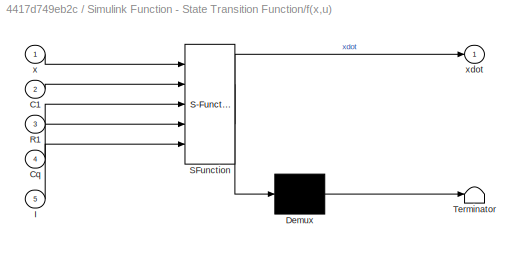
BLOCK [SubSystem] Simulink Function - State Transition Function/f(x,u)
  ErrorFcn = Stateflow.Translate.translate
  PermitHierarchicalResolution = ExplicitOnly
  Ports = [5, 1]
  RequestExecContextInheritance = off
  SFBlockType = MATLAB Function
  TreatAsAtomicUnit = on
  Variant = off
BLOCK [Demux] Simulink Function - State Transition Function/f(x,u)/ Demux 
  Outputs = 1
  Ports = [1, 1]
BLOCK [S-Function] Simulink Function - State Transition Function/f(x,u)/ SFunction 
  EnableBusSupport = on
  FunctionName = sf_sfun
  PortCounts = [5 2]
  Ports = [5, 2]
  SFcnIsStateOwnerBlock = off
  SFunctionDeploymentMode = off
  Tag = Stateflow S-Function BatteryExampleUKF 3
BLOCK [Terminator] Simulink Function - State Transition Function/f(x,u)/ Terminator 
BLOCK [Inport] Simulink Function - State Transition Function/f(x,u)/C1
  IconDisplay = Port number
  Port = 2
BLOCK [Inport] Simulink Function - State Transition Function/f(x,u)/Cq
  IconDisplay = Port number
  Port = 4
BLOCK [Inport] Simulink Function - State Transition Function/f(x,u)/I
  IconDisplay = Port number
  Port = 5
BLOCK [Inport] Simulink Function - State Transition Function/f(x,u)/R1
  IconDisplay = Port number
  Port = 3
BLOCK [Inport] Simulink Function - State Transition Function/f(x,u)/x
  IconDisplay = Port number
BLOCK [Outport] Simulink Function - State Transition Function/f(x,u)/xdot
  IconDisplay = Port number
BLOCK [ArgIn] Simulink Function - State Transition Function/x
  ArgumentName = x
  DisableCoverage = on
  PortDimensions = 2
BLOCK [ArgOut] Simulink Function - State Transition Function/xNext
  ArgumentName = xNext
  DisableCoverage = on
  PortDimensions = 2
BLOCK [ToWorkspace] To Workspace
  FixptAsFi = on
  MaxDataPoints = inf
  Ports = [1]
  SampleTime = -1
  Save2DSignal = 3-D array (concatenate along third dimension)
  SaveFormat = Timeseries
  VariableName = MeasuredCurrent
BLOCK [ToWorkspace] To Workspace - Estimated Capacity
  FixptAsFi = on
  MaxDataPoints = inf
  Ports = [1]
  SampleTime = -1
  Save2DSignal = 3-D array (concatenate along third dimension)
  SaveFormat = Timeseries
  VariableName = EstimatedCapacity
BLOCK [ToWorkspace] To Workspace - Estimated SOC
  FixptAsFi = on
  MaxDataPoints = inf
  Ports = [1]
  SampleTime = -1
  Save2DSignal = 3-D array (concatenate along third dimension)
  SaveFormat = Timeseries
  VariableName = EstimatedSOC
BLOCK [ToWorkspace] To Workspace - Real Capacity
  FixptAsFi = on
  MaxDataPoints = inf
  Ports = [1]
  SampleTime = -1
  Save2DSignal = 3-D array (concatenate along third dimension)
  SaveFormat = Timeseries
  VariableName = RealCapacity
BLOCK [ToWorkspace] To Workspace - Real SOC
  FixptAsFi = on
  MaxDataPoints = inf
  Ports = [1]
  SampleTime = -1
  Save2DSignal = 3-D array (concatenate along third dimension)
  SaveFormat = Timeseries
  VariableName = RealSOC
BLOCK [ToWorkspace] To Workspace1
  FixptAsFi = on
  MaxDataPoints = inf
  Ports = [1]
  SampleTime = -1
  Save2DSignal = 3-D array (concatenate along third dimension)
  SaveFormat = Timeseries
  VariableName = MeasuredVoltage
BLOCK [ToWorkspace] To Workspace2
  FixptAsFi = on
  MaxDataPoints = inf
  Ports = [1]
  SampleTime = -1
  Save2DSignal = 3-D array (concatenate along third dimension)
  SaveFormat = Timeseries
  VariableName = inputCurrent
BLOCK [Reference] Unscented Kalman Filter  REF=sharedTrackingLibrary/Unscented Kalman Filter
  Ports = [1, 1]
  SourceBlock = sharedTrackingLibrary/Unscented Kalman Filter
  SourceProductBaseCode = CT
  SourceProductName = Control System Toolbox
  SourceType = Unscented Kalman Filter
ANNOTATION Random Current Pulse Generator: Random Pulse Genrator
LINE A_Cq:1 -> Kalman Filter:3
LINE C_Cq:1 -> Kalman Filter:4
NET Change Detector:1 -> Measured Capacity (Cq):2, Rate Transition_Enable Signal:1
LINE Degrading Battery/Celsius To K:1 -> Degrading Battery/Sum2:2
LINE Degrading Battery/Current Noise:1 -> Degrading Battery/Sum1:2
LINE Degrading Battery/Current:1 -> Degrading Battery/Sum1:1
NET Degrading Battery/Cycle Based Capacity Degradation/Add:1 -> Degrading Battery/Cycle Based Capacity Degradation/Real Capacity:1, Degrading Battery/Cycle Based Capacity Degradation/Simulink-PS Converter1:1
LINE Degrading Battery/Cycle Based Capacity Degradation/Battery Capacity:1 -> Degrading Battery/Cycle Based Capacity Degradation/Add:1
LINE Degrading Battery/Cycle Based Capacity Degradation/Change Detector:1 -> Degrading Battery/Cycle Based Capacity Degradation/MATLAB Function:1
LINE Degrading Battery/Cycle Based Capacity Degradation/Data Store Read:1 -> Degrading Battery/Cycle Based Capacity Degradation/MATLAB Function:3
LINE Degrading Battery/Cycle Based Capacity Degradation/Degradation Per Cycle:1 -> Degrading Battery/Cycle Based Capacity Degradation/Product:1
NET Degrading Battery/Cycle Based Capacity Degradation/Discharge//Charge Signal:1 -> Degrading Battery/Cycle Based Capacity Degradation/Change Detector:1, Degrading Battery/Cycle Based Capacity Degradation/MATLAB Function:2
LINE Degrading Battery/Cycle Based Capacity Degradation/MATLAB Function:1 -> Degrading Battery/Cycle Based Capacity Degradation/update counter:1
LINE Degrading Battery/Cycle Based Capacity Degradation/Number of Cycles:1 -> Degrading Battery/Cycle Based Capacity Degradation/Product:2
LINE Degrading Battery/Cycle Based Capacity Degradation/Product:1 -> Degrading Battery/Cycle Based Capacity Degradation/Add:2
LINE Degrading Battery/Cycle Based Capacity Degradation:1 -> Degrading Battery/Real Capacity:1
LINE Degrading Battery/From1:1 -> Degrading Battery/Sum:2
LINE Degrading Battery/From4:1 -> Degrading Battery/Sum2:1
LINE Degrading Battery/InputCurrent:1 -> Degrading Battery/Simulink-PS Converter:1
LINE Degrading Battery/Lithium Cell 1RC/Temperature/PS-Simulink Converter1:1 -> Degrading Battery/Lithium Cell 1RC/Temperature/Goto:1
NET Degrading Battery/PS-Simulink Converter:1 -> Degrading Battery/Real SOC:1, Degrading Battery/State Transition Table:3
LINE Degrading Battery/SOC Lower Bound:1 -> Degrading Battery/State Transition Table:2
LINE Degrading Battery/SOC Upper Bound:1 -> Degrading Battery/State Transition Table:1
NET Degrading Battery/State Transition Table:1 -> Degrading Battery/Cycle Based Capacity Degradation:1, Degrading Battery/Discharge//Charge Indicator:1, Degrading Battery/To Workspace - Discharge//Charge Indicator:1
LINE Degrading Battery/Sum1:1 -> Degrading Battery/Measured Current:1
LINE Degrading Battery/Sum2:1 -> Degrading Battery/Measured Temperature:1
LINE Degrading Battery/Sum:1 -> Degrading Battery/Measured Voltage:1
LINE Degrading Battery/Temperature Inputs/Signal Builder:1 -> Degrading Battery/Temperature Inputs/T:1
LINE Degrading Battery/Temperature Inputs:1 -> Degrading Battery/Goto:1
LINE Degrading Battery/Temperature/From3:1 -> Degrading Battery/Temperature/Simulink-PS Converter1:1
LINE Degrading Battery/Voltage Noise:1 -> Degrading Battery/Sum:1
LINE Degrading Battery/Voltage Sensor/PS-Simulink Converter:1 -> Degrading Battery/Voltage Sensor/Goto:1
NET Degrading Battery:1 -> Change Detector:1, Random Current Pulse Generator:1
NET Degrading Battery:2 -> Measured Capacity (Cq):1, Rate Transition_Current:1, To Workspace:1
LINE Degrading Battery:3 -> Rate Transition_Temperature:1
NET Degrading Battery:4 -> Rate Transition_Voltage:1, To Workspace1:1
LINE Degrading Battery:5 -> To Workspace - Real SOC:1
LINE Degrading Battery:6 -> To Workspace - Real Capacity:1
NET Kalman Filter:1 -> Simulink Function - State Transition Function:3, To Workspace - Estimated Capacity:1
LINE Measured Capacity (Cq)/Abs:1 -> Measured Capacity (Cq)/Divide:2
LINE Measured Capacity (Cq)/Delay:1 -> Measured Capacity (Cq)/Discrete-Time Integrator:2
LINE Measured Capacity (Cq)/Discrete-Time Integrator:1 -> Measured Capacity (Cq)/Abs:1
LINE Measured Capacity (Cq)/Divide:1 -> Measured Capacity (Cq)/Rate Transition 3:1
LINE Measured Capacity (Cq)/Hour To Second:1 -> Measured Capacity (Cq)/Product4:1
LINE Measured Capacity (Cq)/Measured Current:1 -> Measured Capacity (Cq)/Discrete-Time Integrator:1
LINE Measured Capacity (Cq)/Product4:1 -> Measured Capacity (Cq)/Divide:1
LINE Measured Capacity (Cq)/Rate Transition 3:1 -> Measured Capacity (Cq)/Cq:1
LINE Measured Capacity (Cq)/Trigger:1 -> Measured Capacity (Cq)/Delay:1
LINE Measured Capacity (Cq)/dSOC:1 -> Measured Capacity (Cq)/Product4:2
LINE Measured Capacity (Cq):1 -> Kalman Filter:1
LINE Product:1 -> Kalman Filter:5
LINE Q_Cq:1 -> Product:2
LINE Random Current Pulse Generator/Band-Limited White Noise1:1 -> Random Current Pulse Generator/Relational Operator2:1
LINE Random Current Pulse Generator/Constant2:1 -> Random Current Pulse Generator/Relational Operator2:2
LINE Random Current Pulse Generator/Current Amplitude:1 -> Random Current Pulse Generator/Product1:1
NET Random Current Pulse Generator/In:1 -> Random Current Pulse Generator/Product1:2, Random Current Pulse Generator/Switch:2
LINE Random Current Pulse Generator/Product1:1 -> Random Current Pulse Generator/Switch:1
LINE Random Current Pulse Generator/Product2:1 -> Random Current Pulse Generator/Product3:2
LINE Random Current Pulse Generator/Product3:1 -> Random Current Pulse Generator/Switch:3
LINE Random Current Pulse Generator/Pulse Generator:1 -> Random Current Pulse Generator/Product2:2
LINE Random Current Pulse Generator/Relational Operator2:1 -> Random Current Pulse Generator/Product2:1
LINE Random Current Pulse Generator/Switch:1 -> Random Current Pulse Generator/Out:1
LINE Random Current Pulse Generator/Uniform Random Number:1 -> Random Current Pulse Generator/Product3:1
NET Random Current Pulse Generator:1 -> Degrading Battery:1, To Workspace2:1
NET Rate Transition_Current:1 -> Simulink Function - Measurement Function:1, Simulink Function - State Transition Function:1
NET Rate Transition_Enable Signal:1 -> Kalman Filter:2, Product:1
NET Rate Transition_Temperature:1 -> Simulink Function - Measurement Function:2, Simulink Function - State Transition Function:2
LINE Rate Transition_Voltage:1 -> Unscented Kalman Filter:1
LINE SOC:1 -> To Workspace - Estimated SOC:1
LINE Simulink Function - Measurement Function/Add1:1 -> Simulink Function - Measurement Function/y:1
LINE Simulink Function - Measurement Function/Current:1 -> Simulink Function - Measurement Function/Product:2
LINE Simulink Function - Measurement Function/Em Table:1 -> Simulink Function - Measurement Function/Add1:1
NET Simulink Function - Measurement Function/Get SOC:1 -> Simulink Function - Measurement Function/Em Table:1, Simulink Function - Measurement Function/R0 Table:1
LINE Simulink Function - Measurement Function/Get U1:1 -> Simulink Function - Measurement Function/Add1:3
LINE Simulink Function - Measurement Function/Product:1 -> Simulink Function - Measurement Function/Add1:2
LINE Simulink Function - Measurement Function/R0 Table:1 -> Simulink Function - Measurement Function/Product:1
NET Simulink Function - Measurement Function/Temperature (K):1 -> Simulink Function - Measurement Function/Em Table:2, Simulink Function - Measurement Function/R0 Table:2
NET Simulink Function - Measurement Function/x:1 -> Simulink Function - Measurement Function/Get SOC:1, Simulink Function - Measurement Function/Get U1:1
LINE Simulink Function - State Transition Function/Add:1 -> Simulink Function - State Transition Function/xNext:1
LINE Simulink Function - State Transition Function/C1 Table:1 -> Simulink Function - State Transition Function/f(x,u):2
LINE Simulink Function - State Transition Function/Constant:1 -> Simulink Function - State Transition Function/Product:2
LINE Simulink Function - State Transition Function/Current:1 -> Simulink Function - State Transition Function/f(x,u):5
LINE Simulink Function - State Transition Function/Estimated Cq:1 -> Simulink Function - State Transition Function/f(x,u):4
NET Simulink Function - State Transition Function/Get SOC:1 -> Simulink Function - State Transition Function/C1 Table:1, Simulink Function - State Transition Function/R1 Table:1
LINE Simulink Function - State Transition Function/Product:1 -> Simulink Function - State Transition Function/Add:2
LINE Simulink Function - State Transition Function/R1 Table:1 -> Simulink Function - State Transition Function/f(x,u):3
NET Simulink Function - State Transition Function/Temperature (K):1 -> Simulink Function - State Transition Function/C1 Table:2, Simulink Function - State Transition Function/R1 Table:2
LINE Simulink Function - State Transition Function/f(x,u):1 -> Simulink Function - State Transition Function/Product:1
NET Simulink Function - State Transition Function/x:1 -> Simulink Function - State Transition Function/Add:1, Simulink Function - State Transition Function/Get SOC:1, Simulink Function - State Transition Function/f(x,u):1
LINE Unscented Kalman Filter:1 -> SOC:1
PLINE Degrading Battery/Convective Heat Transfer:LConn1 -- Degrading Battery/Ideal Temperature Source:LConn1
PLINE Degrading Battery/Convective Heat Transfer:RConn1 -- Degrading Battery/Lithium Cell 1RC:LConn1
PNET net1: Degrading Battery/Current Sensor:LConn1 -- Degrading Battery/Lithium Cell 1RC:LConn2 -- Degrading Battery/Voltage Sensor:LConn1
PLINE Degrading Battery/Current Sensor:RConn1 -- Degrading Battery/Current:LConn1
PLINE Degrading Battery/Current Sensor:RConn2 -- Degrading Battery/Input Current:LConn1
PLINE Degrading Battery/Cycle Based Capacity Degradation/Degraded Capacity:RConn1 -- Degrading Battery/Cycle Based Capacity Degradation/Simulink-PS Converter1:RConn1
PLINE Degrading Battery/Cycle Based Capacity Degradation:RConn1 -- Degrading Battery/Lithium Cell 1RC:RConn2
PNET net2: Degrading Battery/ERef:LConn1 -- Degrading Battery/Input Current:RConn2 -- Degrading Battery/Lithium Cell 1RC:RConn1 -- Degrading Battery/Voltage Sensor:RConn1
PLINE Degrading Battery/Ideal Temperature Source:RConn1 -- Degrading Battery/Temperature:LConn1
PLINE Degrading Battery/Ideal Temperature Source:RConn2 -- Degrading Battery/Thermal Reference:LConn1
PLINE Degrading Battery/Input Current:RConn1 -- Degrading Battery/Simulink-PS Converter:RConn1
PLINE Degrading Battery/Lithium Cell 1RC/+:RConn1 -- Degrading Battery/Lithium Cell 1RC/R0:RConn1
PLINE Degrading Battery/Lithium Cell 1RC/-:RConn1 -- Degrading Battery/Lithium Cell 1RC/Em_table:RConn1
PNET net3: Degrading Battery/Lithium Cell 1RC/C1:LConn1 -- Degrading Battery/Lithium Cell 1RC/Em_table:LConn1 -- Degrading Battery/Lithium Cell 1RC/R1:LConn1
PNET net4: Degrading Battery/Lithium Cell 1RC/C1:LConn2 -- Degrading Battery/Lithium Cell 1RC/Em_table:RConn2 -- Degrading Battery/Lithium Cell 1RC/R0:LConn2 -- Degrading Battery/Lithium Cell 1RC/R1:LConn2 -- Degrading Battery/Lithium Cell 1RC/Temperature:LConn1 -- Degrading Battery/Lithium Cell 1RC/Thermal Model:RConn1
PNET net5: Degrading Battery/Lithium Cell 1RC/C1:LConn3 -- Degrading Battery/Lithium Cell 1RC/Em_table:LConn3 -- Degrading Battery/Lithium Cell 1RC/R0:LConn3 -- Degrading Battery/Lithium Cell 1RC/R1:LConn3 -- Degrading Battery/Lithium Cell 1RC/SOC:RConn1
PNET net6: Degrading Battery/Lithium Cell 1RC/C1:RConn1 -- Degrading Battery/Lithium Cell 1RC/R0:LConn1 -- Degrading Battery/Lithium Cell 1RC/R1:RConn1
PLINE Degrading Battery/Lithium Cell 1RC/Capacity:RConn1 -- Degrading Battery/Lithium Cell 1RC/Em_table:LConn2
PLINE Degrading Battery/Lithium Cell 1RC/H:RConn1 -- Degrading Battery/Lithium Cell 1RC/Thermal Model:LConn2
PLINE Degrading Battery/Lithium Cell 1RC/Power Sum:LConn1 -- Degrading Battery/Lithium Cell 1RC/R0:RConn2
PLINE Degrading Battery/Lithium Cell 1RC/Power Sum:LConn2 -- Degrading Battery/Lithium Cell 1RC/R1:RConn2
PLINE Degrading Battery/Lithium Cell 1RC/Power Sum:RConn1 -- Degrading Battery/Lithium Cell 1RC/Thermal Model:LConn1
PLINE Degrading Battery/Lithium Cell 1RC/Temperature/PS-Simulink Converter1:LConn1 -- Degrading Battery/Lithium Cell 1RC/Temperature/PS:RConn1
PNET net7: Degrading Battery/Lithium Cell 1RC/Thermal Model/Battery Thermal Mass:LConn1 -- Degrading Battery/Lithium Cell 1RC/Thermal Model/H:RConn1 -- Degrading Battery/Lithium Cell 1RC/Thermal Model/Ideal Heat Flow Source:LConn1 -- Degrading Battery/Lithium Cell 1RC/Thermal Model/Ideal Temperature Sensor:LConn1
PLINE Degrading Battery/Lithium Cell 1RC/Thermal Model/Ideal Heat Flow Source:RConn1 -- Degrading Battery/Lithium Cell 1RC/Thermal Model/P_in:RConn1
PLINE Degrading Battery/Lithium Cell 1RC/Thermal Model/Ideal Heat Flow Source:RConn2 -- Degrading Battery/Lithium Cell 1RC/Thermal Model/ThRef Source:LConn1
PLINE Degrading Battery/Lithium Cell 1RC/Thermal Model/Ideal Temperature Sensor:RConn1 -- Degrading Battery/Lithium Cell 1RC/Thermal Model/ThRef Sensor:LConn1
PLINE Degrading Battery/Lithium Cell 1RC/Thermal Model/Ideal Temperature Sensor:RConn2 -- Degrading Battery/Lithium Cell 1RC/Thermal Model/T:RConn1
PLINE Degrading Battery/Lithium Cell 1RC:LConn3 -- Degrading Battery/PS-Simulink Converter:LConn1
PNET net8: Degrading Battery/Temperature/Simulink-PS Converter1:RConn1 -- Degrading Battery/Temperature/Solver Configuration:RConn1 -- Degrading Battery/Temperature/T:RConn1
PLINE Degrading Battery/Voltage Sensor/+:RConn1 -- Degrading Battery/Voltage Sensor/Voltage Sensor:LConn1
PLINE Degrading Battery/Voltage Sensor/-:RConn1 -- Degrading Battery/Voltage Sensor/Voltage Sensor:RConn2
PLINE Degrading Battery/Voltage Sensor/PS-Simulink Converter:LConn1 -- Degrading Battery/Voltage Sensor/Voltage Sensor:RConn1
note: NET lines group one-source signal fan-out (src -> all destinations, sorted); 1:1 wires keep LINE; PNET lines group multi-terminal physical nets as a canonical sorted terminal list (undirected conserving connections); 2-terminal nets keep the pairwise PLINE form
CHART Simulink Function - State Transition Function/f(x,u) states=1 transitions=1
  STATE_LABEL 'eML_blk_kernel()'
  STATE_LABEL 'SCRIPT:\nfunction xdot = fx(x,C1,R1,Cq,I)\nxdot = zeros(size(x));\nU1 = x(2);\nxdot(1) = -I/(3600*Cq);\nxdot(2) = -1/(R1*C1)*U1 + I/C1;\n'
CHART Degrading Battery/State Transition Table states=2 transitions=7
  STATE_LABEL 'Discharge\ntype = -1.0;'
  STATE_LABEL 'Charge\ntype = 1.0;'
CHART Degrading Battery/Cycle Based Capacity Degradation/MATLAB Function states=1 transitions=1
  STATE_LABEL 'eML_blk_kernel()'
  STATE_LABEL 'SCRIPT:\nfunction y = fcn(u,I,cnt)\n\nif(u>=1 && I<0)\n    cnt = cnt+1;\nend\ny = cnt;\n'
